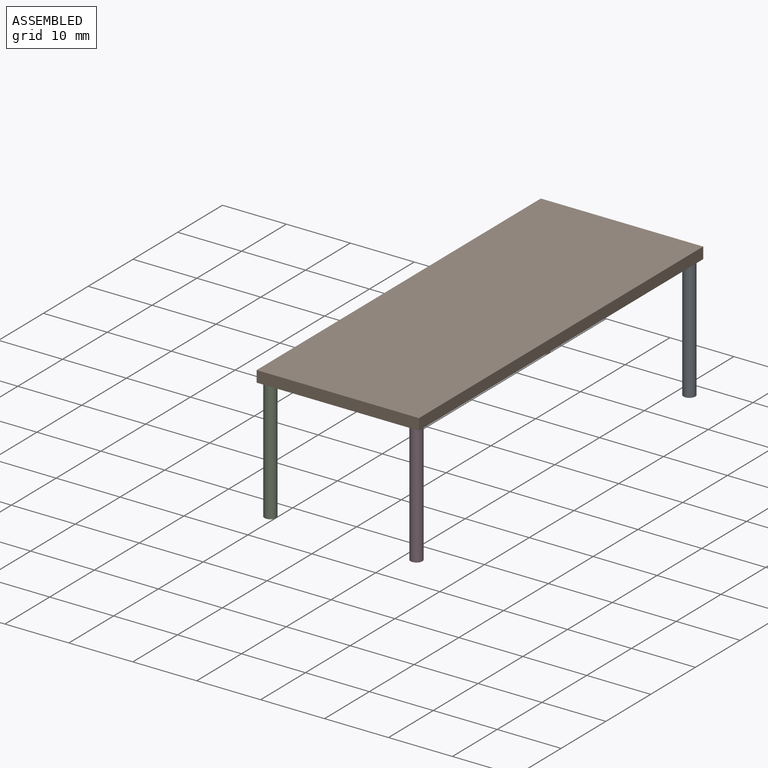
[diagram: assembled view]
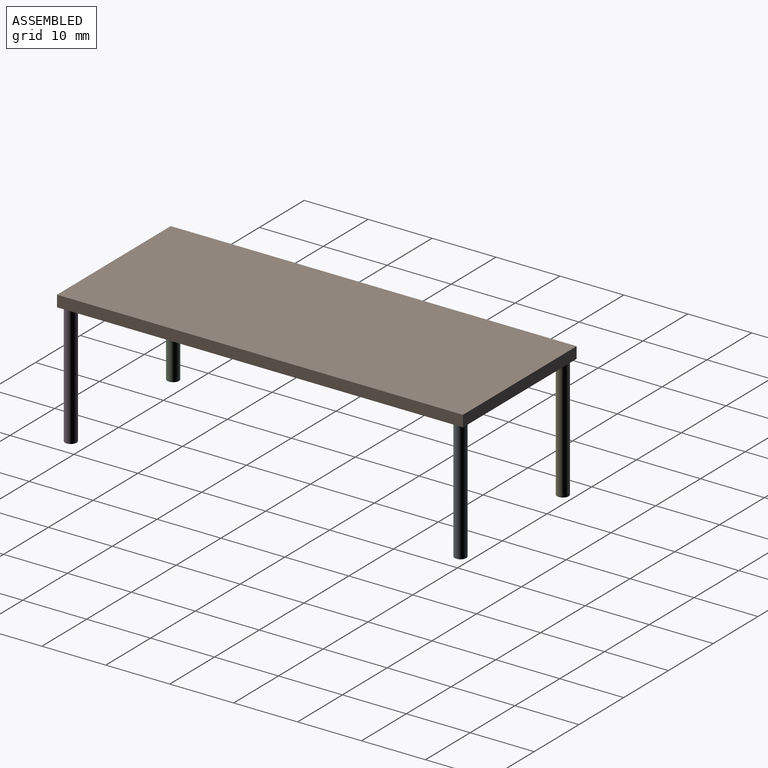
[diagram: assembled view, second angle]
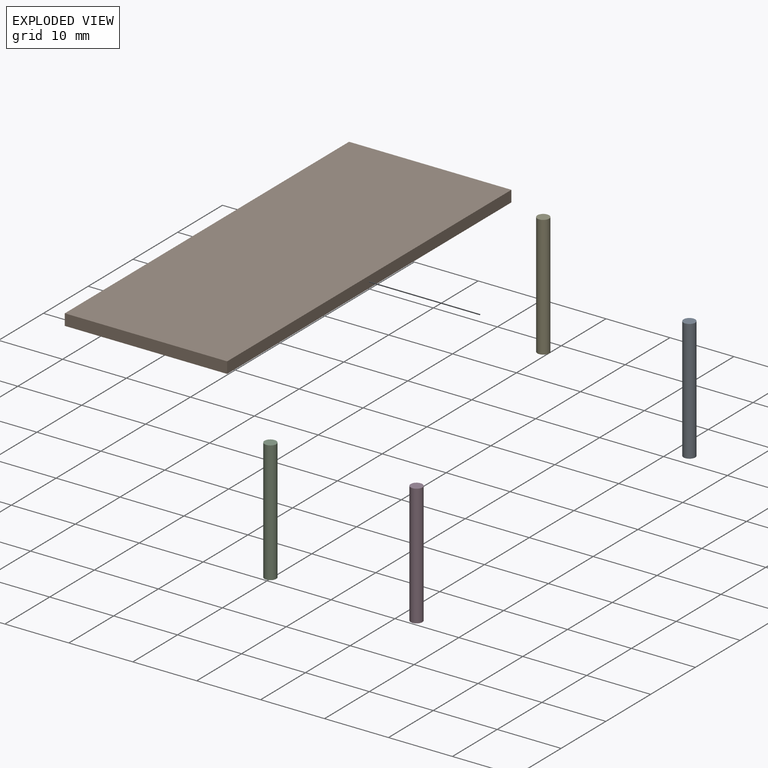
[diagram: exploded view]
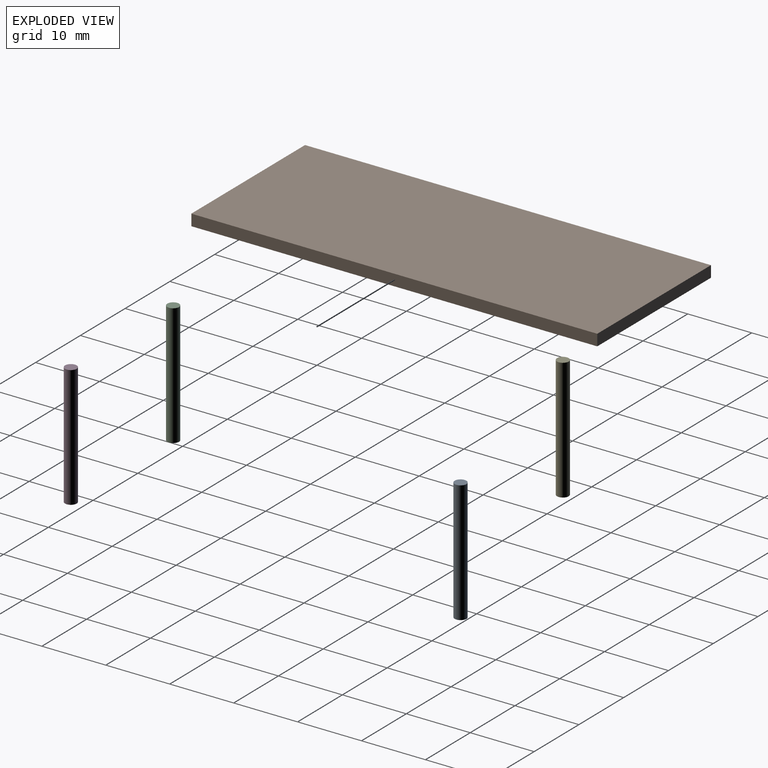
[diagram: exploded view, second angle]
ASSEMBLY  parts=5 mates=4
PART A: 3 faces, bbox 19.1x1.8x1.8 mm
  f0: plane 1.83x1.83mm, normal (-1,0,0), area 2.6mm2, adj f2
  f1: plane 1.83x1.83mm, normal (1,0,0), area 2.6mm2, adj f2
  f2: cylinder r=0.91mm len=19.05mm, axis (1,0,0), area 109.4mm2, adj f0,f1
PART B: 6 faces, bbox 25.4x63.5x1.8 mm
  f0: plane 63.5x1.78mm, normal (1,0,0), area 112.9mm2, adj f1,f3,f4,f5
  f1: plane 25.4x1.78mm, normal (0,1,0), area 45.2mm2, adj f0,f2,f4,f5
  f2: plane 63.5x1.78mm, normal (-1,0,0), area 112.9mm2, adj f1,f3,f4,f5
  f3: plane 25.4x1.78mm, normal (0,-1,0), area 45.2mm2, adj f0,f2,f4,f5
  f4: plane 63.5x25.4mm, normal (0,0,1), area 1612.9mm2, adj f0,f1,f2,f3
  f5: plane 63.5x25.4mm, normal (0,0,-1), area 1612.9mm2, adj f0,f1,f2,f3
PART C: same geometry as A
PART D: same geometry as A
PART E: same geometry as A
PLACE A rot(axis=(0.58,-0.58,0.58),120deg) t=(13.9,20.22,0.1)mm
PLACE B t=(2.47,-10.26,10.34)mm
PLACE C rot(axis=(0.71,0,0.71),180deg) t=(-8.96,-40.74,0.1)mm
PLACE D rot(axis=(0.71,0,0.71),180deg) t=(13.9,-40.74,0.1)mm
PLACE E rot(axis=(0.71,0,0.71),180deg) t=(-8.96,20.22,0.1)mm
MATE fastened D.f2 <-> B.f5  axis (0,0,1) through (13.9,-40.74,10.34)mm
MATE fastened C.f2 <-> B.f5  axis (0,0,1) through (-8.96,-40.74,10.34)mm
MATE fastened A.f2 <-> B.f5  axis (0,0,1) through (13.9,20.22,10.34)mm
MATE fastened E.f2 <-> B.f5  axis (0,0,1) through (-8.96,20.22,10.34)mm
